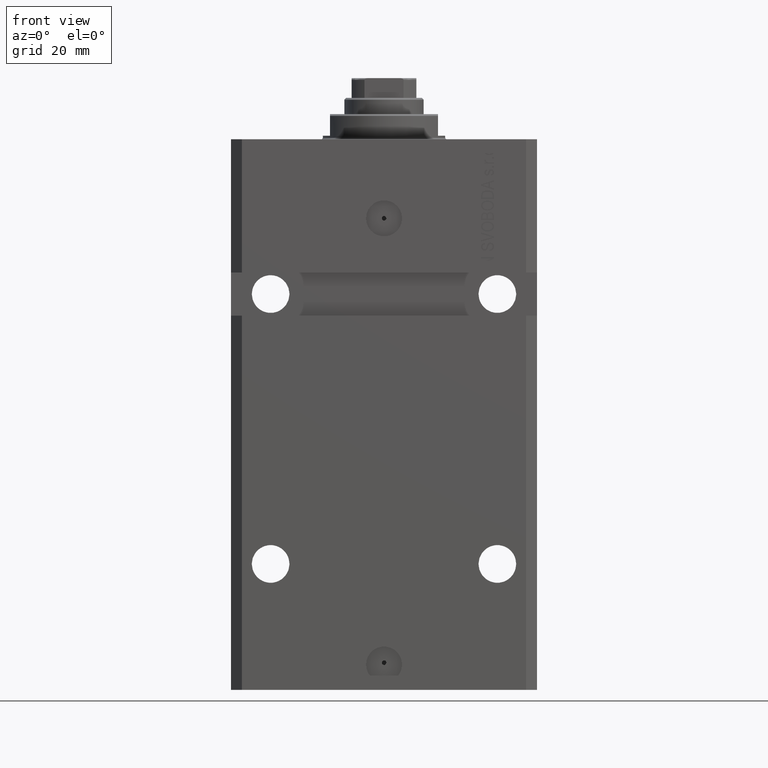
[diagram: clean part render]
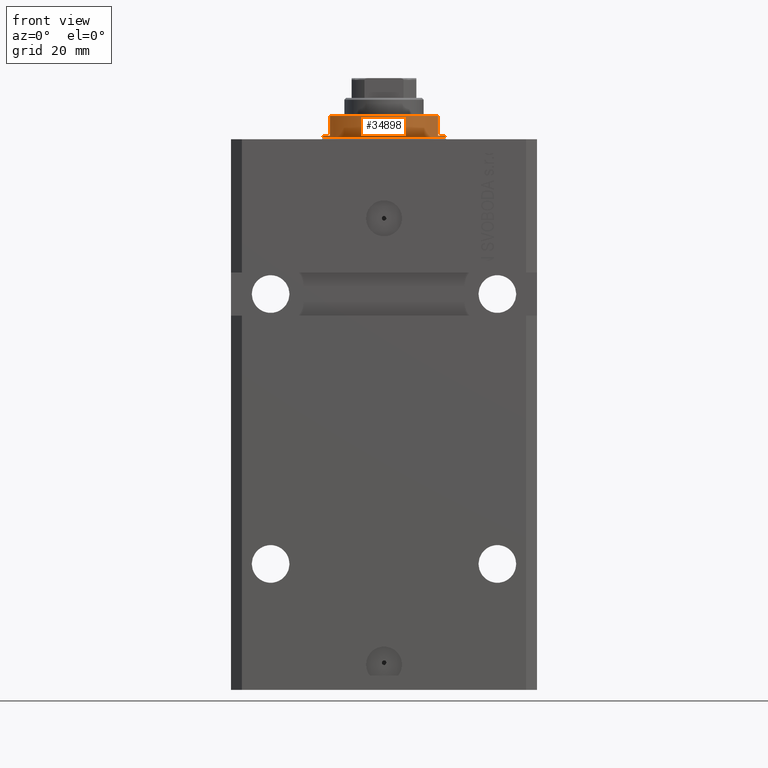
[diagram: same view with one face highlighted and labeled with its STEP entity id]
A machine part, front view. The second image highlights one B-rep face of the part: STEP entity #34898.
In plain terms, the highlighted cylindrical surface (partial cylindrical patch) has radius 17 mm, axis along (0, 0, -1).
Its self-contained STEP definition (entity closure, byte-faithful):
#879 = EDGE_CURVE ( 'NONE', #45218, #40368, #10850, .T. ) ;
#1192 = ORIENTED_EDGE ( 'NONE', *, *, #30766, .T. ) ;
#2506 = ORIENTED_EDGE ( 'NONE', *, *, #13299, .F. ) ;
#3617 = CARTESIAN_POINT ( 'NONE',  ( 14.99999999999999645, -8.000000000000003553, -1.000000000000000000 ) ) ;
#4513 = CARTESIAN_POINT ( 'NONE',  ( 0.000000000000000000, 0.000000000000000000, -1.000000000000000000 ) ) ;
#4762 = CIRCLE ( 'NONE', #9454, 17.00000000000000000 ) ;
#6123 = CARTESIAN_POINT ( 'NONE',  ( -15.00000000000000000, -8.000000000000001776, -6.500000000000014211 ) ) ;
#6846 = AXIS2_PLACEMENT_3D ( 'NONE', #40509, #47572, #32719 ) ;
#9454 = AXIS2_PLACEMENT_3D ( 'NONE', #4513, #30077, #15705 ) ;
#9516 = CARTESIAN_POINT ( 'NONE',  ( 17.00000000000000000, 0.000000000000000000, -0.4999999999999995559 ) ) ;
#10850 = CIRCLE ( 'NONE', #41966, 17.00000000000000000 ) ;
#11280 = EDGE_CURVE ( 'NONE', #36326, #44445, #30513, .T. ) ;
#12326 = EDGE_CURVE ( 'NONE', #45204, #14117, #36466, .T. ) ;
#12899 = ORIENTED_EDGE ( 'NONE', *, *, #879, .F. ) ;
#13022 = EDGE_CURVE ( 'NONE', #13489, #14117, #14241, .T. ) ;
#13299 = EDGE_CURVE ( 'NONE', #40368, #44445, #38855, .T. ) ;
#13489 = VERTEX_POINT ( 'NONE', #6123 ) ;
#14117 = VERTEX_POINT ( 'NONE', #29830 ) ;
#14241 = CIRCLE ( 'NONE', #23602, 17.00000000000000000 ) ;
#14890 = ORIENTED_EDGE ( 'NONE', *, *, #13022, .T. ) ;
#15044 = CARTESIAN_POINT ( 'NONE',  ( 15.00000000000000000, -8.000000000000001776, -7.000000000000000000 ) ) ;
#15705 = DIRECTION ( 'NONE',  ( -1.000000000000000000, 0.000000000000000000, 0.000000000000000000 ) ) ;
#16100 = EDGE_CURVE ( 'NONE', #45218, #13489, #41253, .T. ) ;
#17370 = ORIENTED_EDGE ( 'NONE', *, *, #16100, .T. ) ;
#17549 = DIRECTION ( 'NONE',  ( 0.000000000000000000, 0.000000000000000000, -1.000000000000000000 ) ) ;
#17923 = ORIENTED_EDGE ( 'NONE', *, *, #11280, .T. ) ;
#18020 = CARTESIAN_POINT ( 'NONE',  ( 0.000000000000000000, 0.000000000000000000, -1.000000000000000000 ) ) ;
#19239 = DIRECTION ( 'NONE',  ( -0.000000000000000000, -0.000000000000000000, -1.000000000000000000 ) ) ;
#19846 = CARTESIAN_POINT ( 'NONE',  ( -17.00000000000000000, 2.081899558550500280E-15, -1.000000000000000000 ) ) ;
#21476 = VECTOR ( 'NONE', #28381, 1000.000000000000000 ) ;
#22007 = CYLINDRICAL_SURFACE ( 'NONE', #6846, 17.00000000000000000 ) ;
#23602 = AXIS2_PLACEMENT_3D ( 'NONE', #25748, #33757, #40591 ) ;
#23699 = VECTOR ( 'NONE', #38312, 1000.000000000000000 ) ;
#25748 = CARTESIAN_POINT ( 'NONE',  ( 0.000000000000000000, 0.000000000000000000, -6.500000000000013323 ) ) ;
#27537 = ORIENTED_EDGE ( 'NONE', *, *, #46414, .F. ) ;
#28381 = DIRECTION ( 'NONE',  ( -0.000000000000000000, -0.000000000000000000, 1.000000000000000000 ) ) ;
#29175 = DIRECTION ( 'NONE',  ( 0.000000000000000000, 0.000000000000000000, -1.000000000000000000 ) ) ;
#29312 = FACE_OUTER_BOUND ( 'NONE', #38599, .T. ) ;
#29830 = CARTESIAN_POINT ( 'NONE',  ( 15.00000000000000000, -8.000000000000001776, -6.500000000000013323 ) ) ;
#30077 = DIRECTION ( 'NONE',  ( 0.000000000000000000, 0.000000000000000000, -1.000000000000000000 ) ) ;
#30275 = CARTESIAN_POINT ( 'NONE',  ( 17.00000000000000000, 0.000000000000000000, -1.000000000000000000 ) ) ;
#30513 = CIRCLE ( 'NONE', #31284, 17.00000000000000000 ) ;
#30547 = VECTOR ( 'NONE', #29175, 1000.000000000000000 ) ;
#30578 = VECTOR ( 'NONE', #42768, 1000.000000000000000 ) ;
#30669 = CARTESIAN_POINT ( 'NONE',  ( 0.000000000000000000, 0.000000000000000000, -0.4999999999999995559 ) ) ;
#30766 = EDGE_CURVE ( 'NONE', #34971, #36326, #47585, .T. ) ;
#31284 = AXIS2_PLACEMENT_3D ( 'NONE', #30669, #19239, #42362 ) ;
#32425 = CARTESIAN_POINT ( 'NONE',  ( -14.99999999999999645, -8.000000000000003553, -1.000000000000000000 ) ) ;
#32719 = DIRECTION ( 'NONE',  ( 1.000000000000000000, 0.000000000000000000, 0.000000000000000000 ) ) ;
#32862 = DIRECTION ( 'NONE',  ( -1.000000000000000000, 0.000000000000000000, 0.000000000000000000 ) ) ;
#33757 = DIRECTION ( 'NONE',  ( 0.000000000000000000, 0.000000000000000000, 1.000000000000000000 ) ) ;
#34898 = ADVANCED_FACE ( 'NONE', ( #29312 ), #22007, .T. ) ;
#34971 = VERTEX_POINT ( 'NONE', #30275 ) ;
#36326 = VERTEX_POINT ( 'NONE', #9516 ) ;
#36466 = LINE ( 'NONE', #15044, #30547 ) ;
#38306 = ORIENTED_EDGE ( 'NONE', *, *, #12326, .F. ) ;
#38312 = DIRECTION ( 'NONE',  ( 0.000000000000000000, 0.000000000000000000, -1.000000000000000000 ) ) ;
#38599 = EDGE_LOOP ( 'NONE', ( #2506, #12899, #17370, #14890, #38306, #27537, #1192, #17923 ) ) ;
#38855 = LINE ( 'NONE', #46420, #30578 ) ;
#40368 = VERTEX_POINT ( 'NONE', #19846 ) ;
#40509 = CARTESIAN_POINT ( 'NONE',  ( 0.000000000000000000, 0.000000000000000000, -7.000000000000000000 ) ) ;
#40591 = DIRECTION ( 'NONE',  ( -1.000000000000000000, 0.000000000000000000, 0.000000000000000000 ) ) ;
#41253 = LINE ( 'NONE', #45870, #23699 ) ;
#41966 = AXIS2_PLACEMENT_3D ( 'NONE', #18020, #17549, #32862 ) ;
#42362 = DIRECTION ( 'NONE',  ( 1.000000000000000000, 0.000000000000000000, 0.000000000000000000 ) ) ;
#42768 = DIRECTION ( 'NONE',  ( -0.000000000000000000, -0.000000000000000000, 1.000000000000000000 ) ) ;
#43520 = CARTESIAN_POINT ( 'NONE',  ( -17.00000000000000000, 2.081899558550500280E-15, -0.4999999999999995559 ) ) ;
#44445 = VERTEX_POINT ( 'NONE', #43520 ) ;
#45204 = VERTEX_POINT ( 'NONE', #3617 ) ;
#45218 = VERTEX_POINT ( 'NONE', #32425 ) ;
#45870 = CARTESIAN_POINT ( 'NONE',  ( -15.00000000000000000, -8.000000000000001776, -7.000000000000000000 ) ) ;
#46414 = EDGE_CURVE ( 'NONE', #34971, #45204, #4762, .T. ) ;
#46420 = CARTESIAN_POINT ( 'NONE',  ( -17.00000000000000000, 2.081899558550500280E-15, -7.000000000000000000 ) ) ;
#46883 = CARTESIAN_POINT ( 'NONE',  ( 17.00000000000000000, 0.000000000000000000, -7.000000000000000000 ) ) ;
#47572 = DIRECTION ( 'NONE',  ( -0.000000000000000000, -0.000000000000000000, 1.000000000000000000 ) ) ;
#47585 = LINE ( 'NONE', #46883, #21476 ) ;